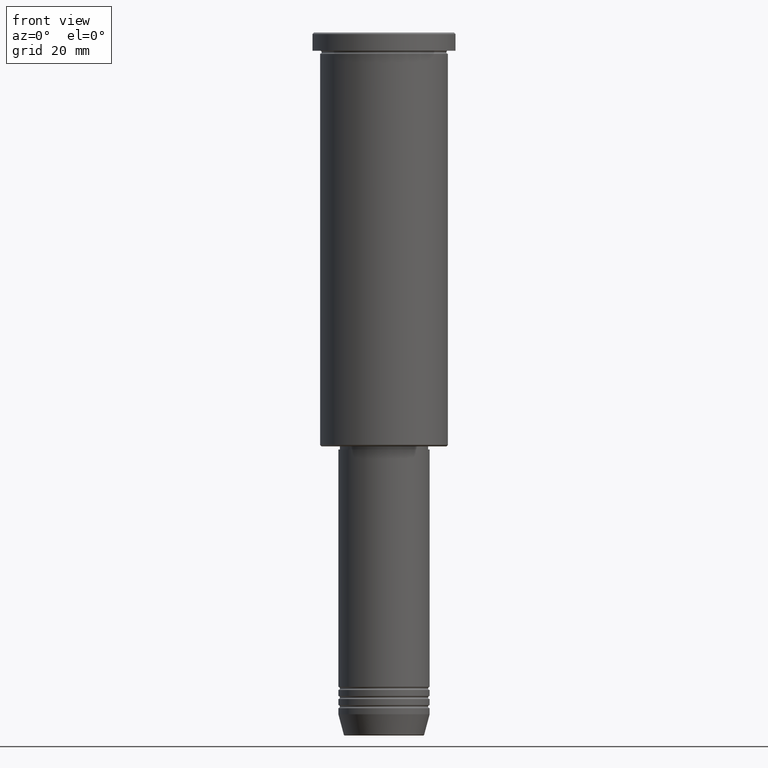
[diagram: clean part render]
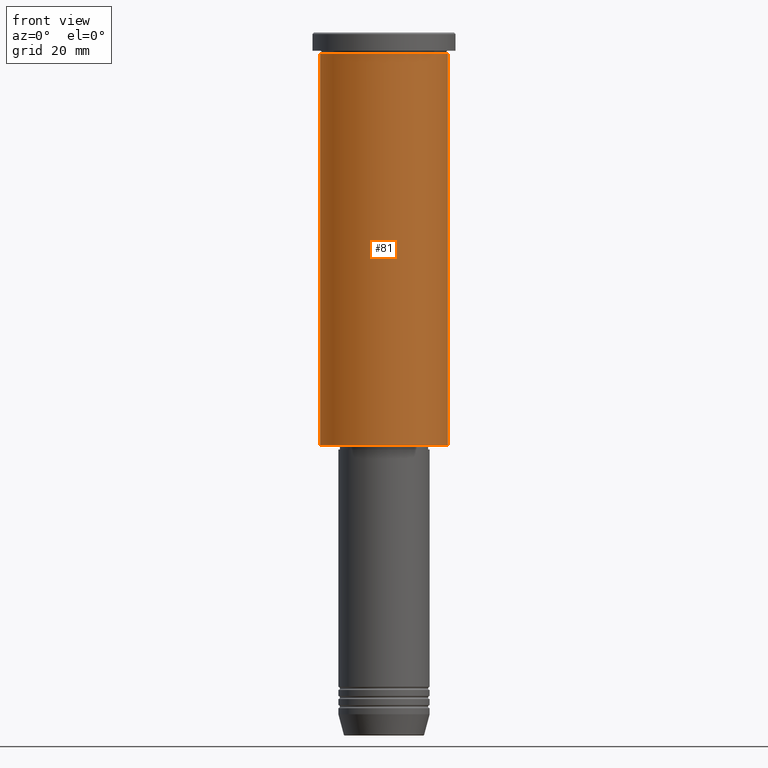
[diagram: same view with one face highlighted and labeled with its STEP entity id]
A machine part, front view. The second image highlights one B-rep face of the part: STEP entity #81.
In plain terms, the highlighted cylindrical surface (partial cylindrical patch) has radius 21 mm, axis along (-0, -0, 1).
Its self-contained STEP definition (entity closure, byte-faithful):
#12 = VERTEX_POINT ( 'NONE', #1087 ) ;
#57 = EDGE_CURVE ( 'NONE', #904, #611, #73, .T. ) ;
#73 = LINE ( 'NONE', #437, #327 ) ;
#81 = ADVANCED_FACE ( 'NONE', ( #988 ), #175, .T. ) ;
#103 = LINE ( 'NONE', #653, #878 ) ;
#108 = DIRECTION ( 'NONE',  ( -0.000000000000000000, -0.000000000000000000, 1.000000000000000000 ) ) ;
#126 = CARTESIAN_POINT ( 'NONE',  ( -21.00000000000000000, 2.571758278209441661E-15, -135.5000000000000284 ) ) ;
#161 = CARTESIAN_POINT ( 'NONE',  ( 0.000000000000000000, 0.000000000000000000, -6.999999999999994671 ) ) ;
#164 = CARTESIAN_POINT ( 'NONE',  ( 21.00000000000000000, 0.000000000000000000, -6.999999999999994671 ) ) ;
#175 = CYLINDRICAL_SURFACE ( 'NONE', #895, 21.00000000000000000 ) ;
#184 = ORIENTED_EDGE ( 'NONE', *, *, #848, .T. ) ;
#244 = DIRECTION ( 'NONE',  ( -0.000000000000000000, -0.000000000000000000, 1.000000000000000000 ) ) ;
#249 = VERTEX_POINT ( 'NONE', #126 ) ;
#327 = VECTOR ( 'NONE', #796, 1000.000000000000000 ) ;
#340 = EDGE_CURVE ( 'NONE', #12, #611, #1124, .T. ) ;
#375 = CARTESIAN_POINT ( 'NONE',  ( 21.00000000000000000, 0.000000000000000000, -135.5000000000000284 ) ) ;
#381 = ORIENTED_EDGE ( 'NONE', *, *, #57, .T. ) ;
#402 = CIRCLE ( 'NONE', #783, 21.00000000000000000 ) ;
#421 = AXIS2_PLACEMENT_3D ( 'NONE', #161, #244, #605 ) ;
#437 = CARTESIAN_POINT ( 'NONE',  ( 21.00000000000000000, 0.000000000000000000, 0.000000000000000000 ) ) ;
#443 = DIRECTION ( 'NONE',  ( -0.000000000000000000, -0.000000000000000000, 1.000000000000000000 ) ) ;
#464 = DIRECTION ( 'NONE',  ( -1.000000000000000000, 0.000000000000000000, 0.000000000000000000 ) ) ;
#489 = CARTESIAN_POINT ( 'NONE',  ( 0.000000000000000000, 0.000000000000000000, -135.5000000000000284 ) ) ;
#602 = ORIENTED_EDGE ( 'NONE', *, *, #340, .F. ) ;
#605 = DIRECTION ( 'NONE',  ( 1.000000000000000000, 0.000000000000000000, 0.000000000000000000 ) ) ;
#611 = VERTEX_POINT ( 'NONE', #164 ) ;
#634 = CARTESIAN_POINT ( 'NONE',  ( 0.000000000000000000, 0.000000000000000000, 0.000000000000000000 ) ) ;
#653 = CARTESIAN_POINT ( 'NONE',  ( -21.00000000000000000, 2.571758278209441661E-15, 0.000000000000000000 ) ) ;
#783 = AXIS2_PLACEMENT_3D ( 'NONE', #489, #108, #464 ) ;
#796 = DIRECTION ( 'NONE',  ( -0.000000000000000000, -0.000000000000000000, 1.000000000000000000 ) ) ;
#803 = DIRECTION ( 'NONE',  ( 1.000000000000000000, 0.000000000000000000, 0.000000000000000000 ) ) ;
#806 = EDGE_LOOP ( 'NONE', ( #855, #184, #381, #602 ) ) ;
#825 = DIRECTION ( 'NONE',  ( -0.000000000000000000, -0.000000000000000000, 1.000000000000000000 ) ) ;
#848 = EDGE_CURVE ( 'NONE', #249, #904, #402, .T. ) ;
#855 = ORIENTED_EDGE ( 'NONE', *, *, #893, .F. ) ;
#878 = VECTOR ( 'NONE', #825, 1000.000000000000000 ) ;
#893 = EDGE_CURVE ( 'NONE', #249, #12, #103, .T. ) ;
#895 = AXIS2_PLACEMENT_3D ( 'NONE', #634, #443, #803 ) ;
#904 = VERTEX_POINT ( 'NONE', #375 ) ;
#988 = FACE_OUTER_BOUND ( 'NONE', #806, .T. ) ;
#1087 = CARTESIAN_POINT ( 'NONE',  ( -21.00000000000000000, 2.571758278209441661E-15, -6.999999999999994671 ) ) ;
#1124 = CIRCLE ( 'NONE', #421, 21.00000000000000000 ) ;